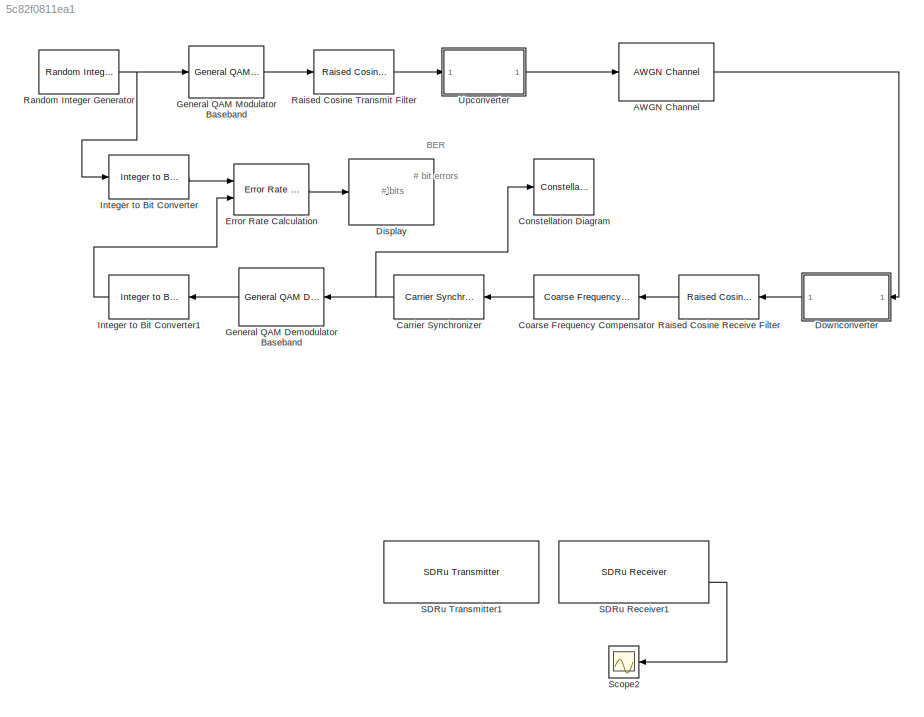
MODEL slx_5c82f0811ea1
KIND model
CONFIG AbsTol = auto
CONFIG EnableMultiTasking = off
CONFIG FixedStep = auto
CONFIG MaxStep = auto
CONFIG MinStep = auto
CONFIG RelTol = 1e-3
CONFIG SampleTimeConstraint = Unconstrained
CONFIG Solver = VariableStepAuto
CONFIG SolverName = VariableStepAuto
CONFIG StartTime = 0.0
CONFIG StopTime = 100
BLOCK [Reference] AWGN Channel  REF=commchan3/AWGN
Channel
  Ports = [1, 1]
  SourceBlock = commchan3/AWGN\nChannel
  SourceType = AWGN Channel
  UserDataPersistent = on
BLOCK [Reference] Carrier Synchronizer  REF=commsync2/Carrier Synchronizer
  Ports = [1, 1]
  SourceBlock = commsync2/Carrier Synchronizer
  SourceType = Carrier Synchronizer
BLOCK [Reference] Coarse Frequency Compensator  REF=commrfcorlib/Coarse Frequency
Compensator
  Ports = [1, 1]
  SourceBlock = commrfcorlib/Coarse Frequency\nCompensator
  SourceType = Coarse Frequency Compensator
BLOCK [ConstellationDiagram] Constellation Diagram
  Ports = [1]
  ScopeSpecificationString = comm.scopes.ConstellationDiagramBlockCfg('CurrentConfiguration', extmgr.ConfigurationSet(extmgr.Configuration('Core','General UI',true),extmgr.Configuration('Core','Source UI',true),extmgr.Configuration('Sources','WiredSimulink',true),extmgr.Configuration('Sources','SimulinkEvent',false),extmgr.Configuration('Sources','Simulink',false),extmgr.Configuration('Sources','File',false),extmgr.Configurat...<+2137ch>
BLOCK [Display] Display
  Decimation = 1
  Ports = [1]
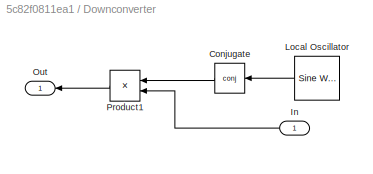
BLOCK [SubSystem] Downconverter
  Ports = [1, 1]
  RequestExecContextInheritance = off
  Variant = off
BLOCK [Math] Downconverter/Conjugate
  Operator = conj
  Ports = [1, 1]
BLOCK [Inport] Downconverter/In
  IconDisplay = Port number
BLOCK [Reference] Downconverter/Local Oscillator  REF=dspsrcs4/Sine Wave
  Ports = [0, 1]
  SourceBlock = dspsrcs4/Sine Wave
  SourceType = Sine Wave
BLOCK [Outport] Downconverter/Out
  IconDisplay = Port number
BLOCK [Product] Downconverter/Product1
  InputSameDT = off
  OutDataTypeStr = Inherit: Inherit via internal rule
  Ports = [2, 1]
  SaturateOnIntegerOverflow = off
BLOCK [Reference] Error Rate Calculation  REF=commsink2/Error Rate
Calculation
  Ports = [2, 1]
  SourceBlock = commsink2/Error Rate\nCalculation
  SourceType = Error Rate Calculation
BLOCK [Reference] General QAM Demodulator Baseband  REF=commdigbbndam3/General QAM
Demodulator
Baseband
  Ports = [1, 1]
  SourceBlock = commdigbbndam3/General QAM\nDemodulator\nBaseband
  SourceType = General QAM Demodulator Baseband
BLOCK [Reference] General QAM Modulator Baseband  REF=commdigbbndam3/General QAM
Modulator
Baseband
  Ports = [1, 1]
  SourceBlock = commdigbbndam3/General QAM\nModulator\nBaseband
  SourceType = General QAM Modulator Baseband
BLOCK [Reference] Integer to Bit Converter  REF=commutil2/Integer to Bit
Converter
  Ports = [1, 1]
  SourceBlock = commutil2/Integer to Bit\nConverter
  SourceType = Integer to Bit Converter
BLOCK [Reference] Integer to Bit Converter1  REF=commutil2/Integer to Bit
Converter
  Ports = [1, 1]
  SourceBlock = commutil2/Integer to Bit\nConverter
  SourceType = Integer to Bit Converter
BLOCK [Reference] Raised Cosine Receive Filter  REF=commfilt2/Raised Cosine
Receive Filter
  Ports = [1, 1]
  SourceBlock = commfilt2/Raised Cosine\nReceive Filter
  SourceType = Raised Cosine Receive Filter
  UserDataPersistent = on
BLOCK [Reference] Raised Cosine Transmit Filter  REF=commfilt2/Raised Cosine
Transmit Filter
  Ports = [1, 1]
  SourceBlock = commfilt2/Raised Cosine\nTransmit Filter
  SourceType = Raised Cosine Transmit Filter
  UserDataPersistent = on
BLOCK [Reference] Random Integer Generator  REF=commrandsrc3/Random Integer
Generator
  Ports = [0, 1]
  SourceBlock = commrandsrc3/Random Integer\nGenerator
  SourceType = Random Integer Generator
BLOCK [Reference] SDRu Receiver1  REF=commsdrhw_v2/SDRu Receiver
  Commented = on
  Ports = [0, 2]
  SourceBlock = commsdrhw_v2/SDRu Receiver
  SourceLibraryInfo = This block requires <a href="http://www.mathworks.com/hardware-support/usrp.html">Communications System Toolbox Support Package for USRP Radio</a>
  SourceType = SDRu Receiver
BLOCK [Reference] SDRu Transmitter1  REF=commsdrhw_v2/SDRu Transmitter
  Commented = on
  Ports = [1]
  SourceBlock = commsdrhw_v2/SDRu Transmitter
  SourceLibraryInfo = This block requires <a href="http://www.mathworks.com/hardware-support/usrp.html">Communications System Toolbox Support Package for USRP Radio</a>
  SourceType = SDRu Transmitter
BLOCK [Scope] Scope2
  Commented = on
  NumInputPorts = 1
  Ports = [1]
  ScopeSpecificationString = Simulink.scopes.TimeScopeBlockCfg('CurrentConfiguration', extmgr.ConfigurationSet(extmgr.Configuration('Core','General UI',true),extmgr.Configuration('Core','Source UI',true),extmgr.Configuration('Sources','WiredSimulink',true,'DataLoggingVariableName','ScopeData1','DataLoggingLimitDataPoints',true,'DataLoggingSaveFormat','Array','DataLoggingDecimation','1','DataLoggingDecimateData',true),extmgr.C...<+4463ch>
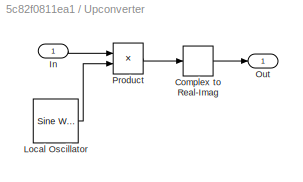
BLOCK [SubSystem] Upconverter
  Ports = [1, 1]
  RequestExecContextInheritance = off
  Variant = off
BLOCK [ComplexToRealImag] Upconverter/Complex to Real-Imag
  Output = Real
  Ports = [1, 1]
BLOCK [Inport] Upconverter/In
  IconDisplay = Port number
BLOCK [Reference] Upconverter/Local Oscillator  REF=dspsrcs4/Sine Wave
  Ports = [0, 1]
  SourceBlock = dspsrcs4/Sine Wave
  SourceType = Sine Wave
BLOCK [Outport] Upconverter/Out
  IconDisplay = Port number
BLOCK [Product] Upconverter/Product
  InputSameDT = off
  OutDataTypeStr = Inherit: Inherit via internal rule
  Ports = [2, 1]
  SaturateOnIntegerOverflow = off
ANNOTATION (root): # bit errors
ANNOTATION (root): # bits
ANNOTATION (root): BER
LINE AWGN Channel:1 -> Downconverter:1
NET Carrier Synchronizer:1 -> Constellation Diagram:1, General QAM Demodulator Baseband:1
LINE Coarse Frequency Compensator:1 -> Carrier Synchronizer:1
LINE Downconverter/Conjugate:1 -> Downconverter/Product1:1
LINE Downconverter/In:1 -> Downconverter/Product1:2
LINE Downconverter/Local Oscillator:1 -> Downconverter/Conjugate:1
LINE Downconverter/Product1:1 -> Downconverter/Out:1
LINE Downconverter:1 -> Raised Cosine Receive Filter:1
LINE Error Rate Calculation:1 -> Display:1
LINE General QAM Demodulator Baseband:1 -> Integer to Bit Converter1:1
LINE General QAM Modulator Baseband:1 -> Raised Cosine Transmit Filter:1
LINE Integer to Bit Converter1:1 -> Error Rate Calculation:2
LINE Integer to Bit Converter:1 -> Error Rate Calculation:1
LINE Raised Cosine Receive Filter:1 -> Coarse Frequency Compensator:1
LINE Raised Cosine Transmit Filter:1 -> Upconverter:1
NET Random Integer Generator:1 -> General QAM Modulator Baseband:1, Integer to Bit Converter:1
LINE SDRu Receiver1:2 -> Scope2:1
LINE Upconverter/Complex to Real-Imag:1 -> Upconverter/Out:1
LINE Upconverter/In:1 -> Upconverter/Product:1
LINE Upconverter/Local Oscillator:1 -> Upconverter/Product:2
LINE Upconverter/Product:1 -> Upconverter/Complex to Real-Imag:1
LINE Upconverter:1 -> AWGN Channel:1
note: NET lines group one-source signal fan-out (src -> all destinations, sorted); 1:1 wires keep LINE
